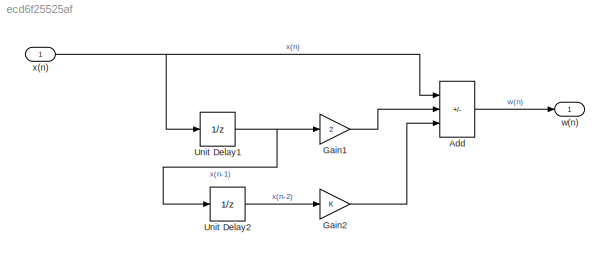
MODEL slx_ecd6f25525af
KIND model
CONFIG AbsTol = auto
CONFIG EnableMultiTasking = off
CONFIG FixedStep = 1
CONFIG MaxStep = auto
CONFIG MinStep = auto
CONFIG RelTol = 1e-3
CONFIG SampleTimeConstraint = Unconstrained
CONFIG Solver = FixedStepAuto
CONFIG SolverName = FixedStepAuto
CONFIG StartTime = 0.0
CONFIG StopTime = 10.0
BLOCK [Sum] Add
  IconShape = rectangular
  Inputs = ++-
  Ports = [3, 1]
BLOCK [Gain] Gain1
  Gain = 2
BLOCK [Gain] Gain2
BLOCK [UnitDelay] Unit Delay1
  HasFrameUpgradeWarning = on
  SampleTime = -1
BLOCK [UnitDelay] Unit Delay2
  HasFrameUpgradeWarning = on
  SampleTime = -1
BLOCK [Outport] w(n)
  OutDataTypeStr = double
  PortDimensions = [1 1]
  SampleTime = [1,0]
  SamplingMode = Sample based
  SignalType = real
BLOCK [Inport] x(n)
  OutDataTypeStr = double
  PortDimensions = [1 1]
  SampleTime = [1,0]
  SamplingMode = Sample based
  SignalType = real
LINE Add:1 -> w(n):1
LINE Gain1:1 -> Add:2
LINE Gain2:1 -> Add:3
NET Unit Delay1:1 -> Gain1:1, Unit Delay2:1
LINE Unit Delay2:1 -> Gain2:1
NET x(n):1 -> Add:1, Unit Delay1:1
note: NET lines group one-source signal fan-out (src -> all destinations, sorted); 1:1 wires keep LINE
